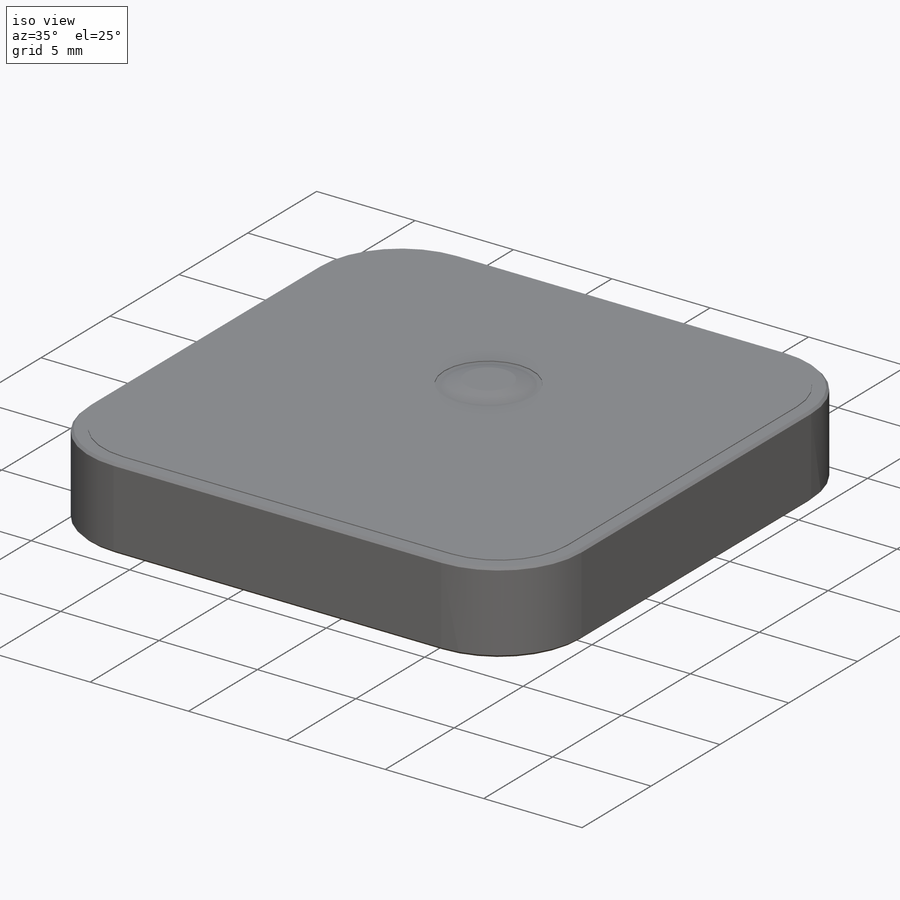
[diagram: iso view]
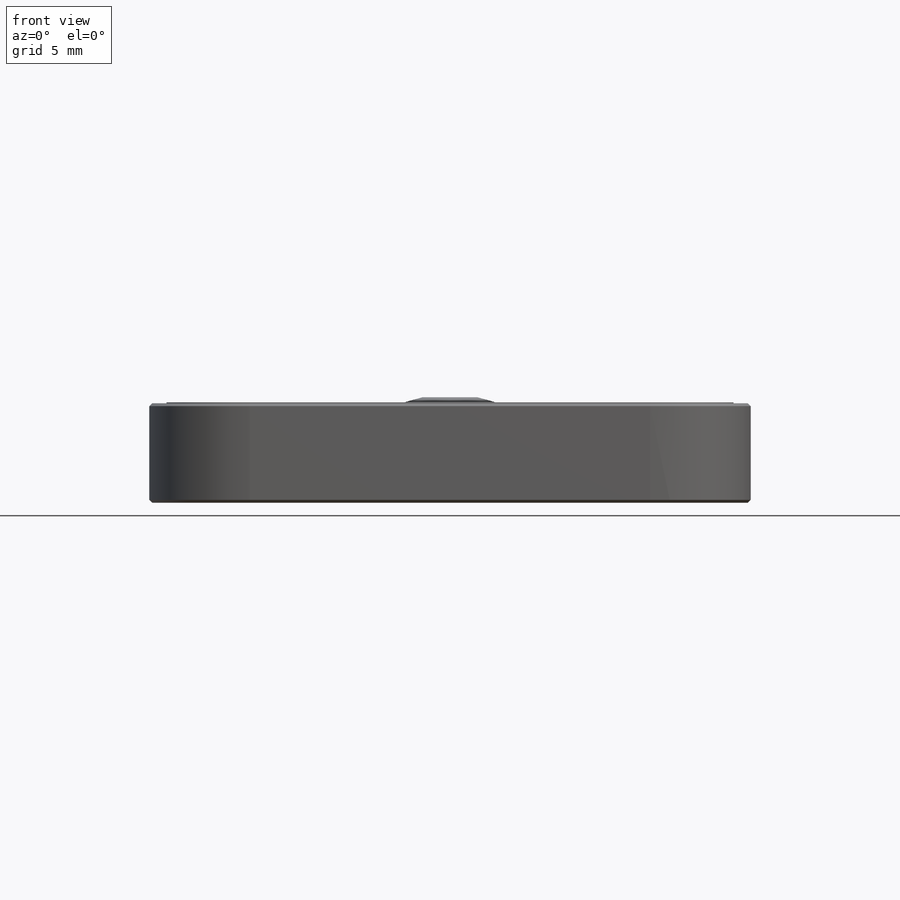
[diagram: front view]
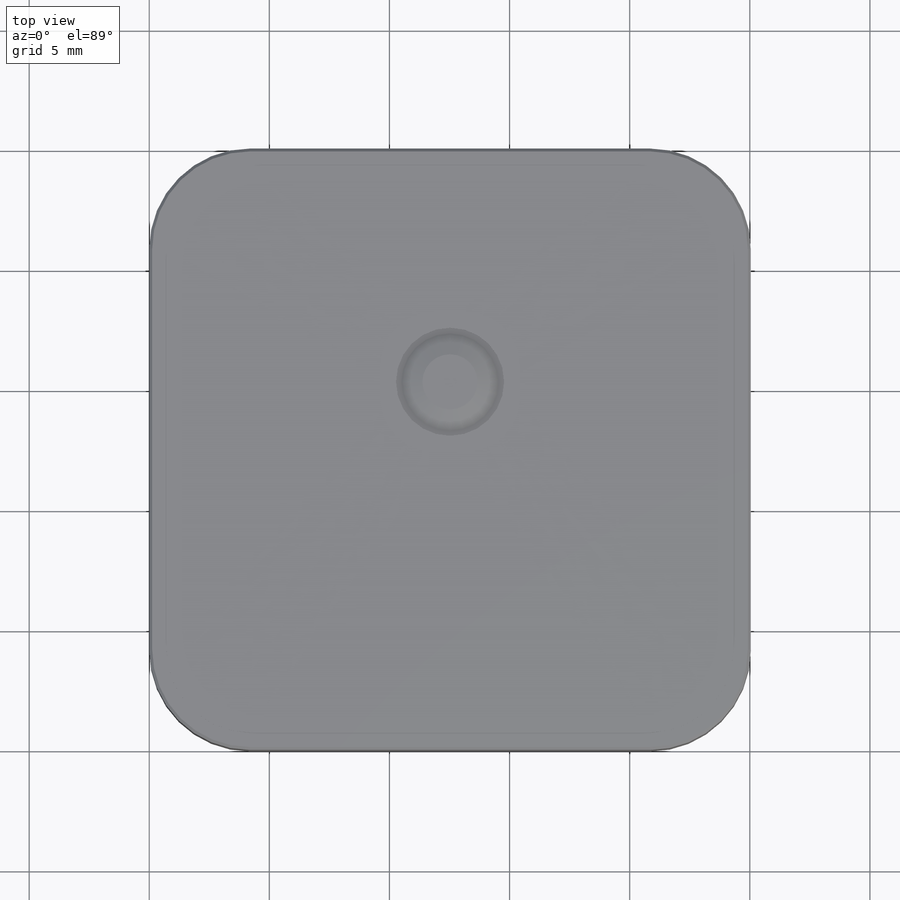
[diagram: top view]
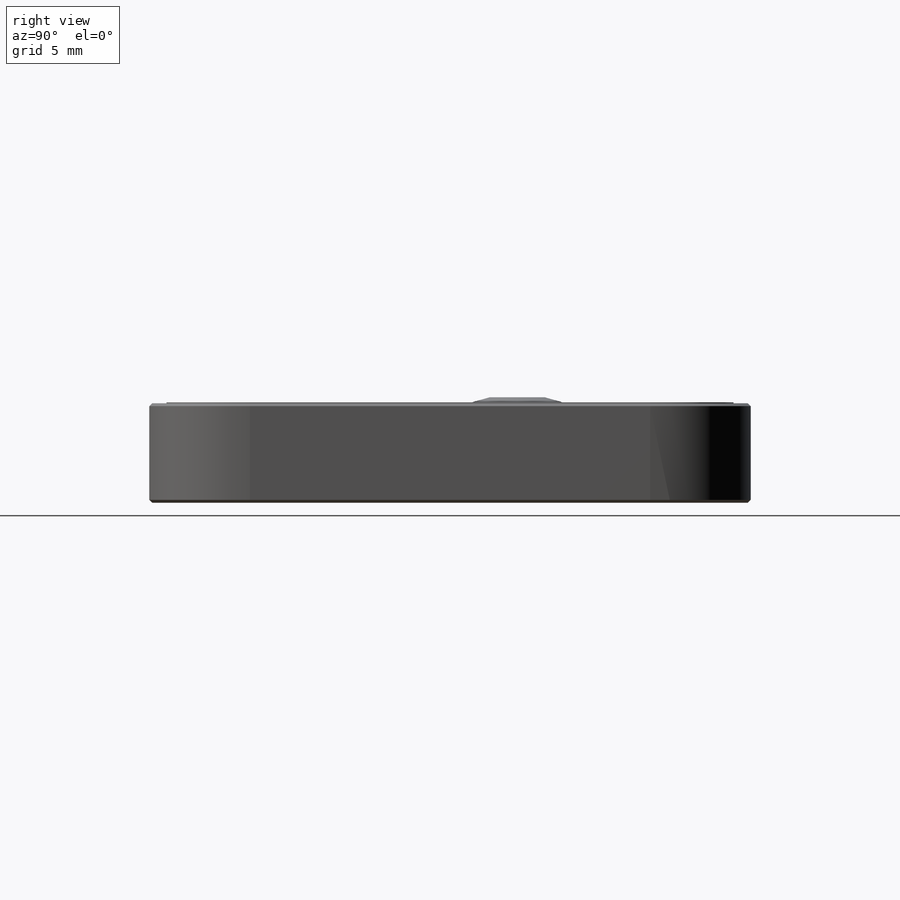
[diagram: right view]
SOLIDWORKS PART (.sldprt)
format: sldprt  version: not decoded by parser v0  size: 301,056 bytes
history: native  units: mm
features: plane x3, sketch x3, extrude x3, chamfer x2, material x1, fillet x1 (+10 scaffold rows collapsed)
feature tree (23):
  scaffold x10  (default folders/planes/origin — collapsed)
  material  "Matériau <non spécifié>"
  plane  "Plan de face"
  plane  "Plan de dessus"
  plane  "Plan de droite"
  sketch  "Esquisse1"  dims[D4=~8.381926mm D1=25.04mm D2=25.04mm D3=15.97mm]
  extrude  "Boss.-Extru.1"  Depth=4.14mm
  fillet  "Congé1"  Radius=4.19mm
  chamfer  "Chanfrein1"  Distance=0.12mm Angle=45deg
  sketch  "Esquisse2"  dims[c1.D1=4.5mm c1.D2=9.0mm c2.D1=0.6mm]
  extrude  "Boss.-Extru.2"  Depth=0.04mm
  sketch  "Esquisse3"
  extrude  "Boss.-Extru.3"  Depth=0.25mm
  chamfer  "Chanfrein2"  Distance=0.25mm Angle=74deg
decode coverage: 8 of 9 modeling features carry decoded parameters
note: ~ marks probable driven/reference dimensions
note: suppression state not decoded; provenance and decode notes live in map.json
